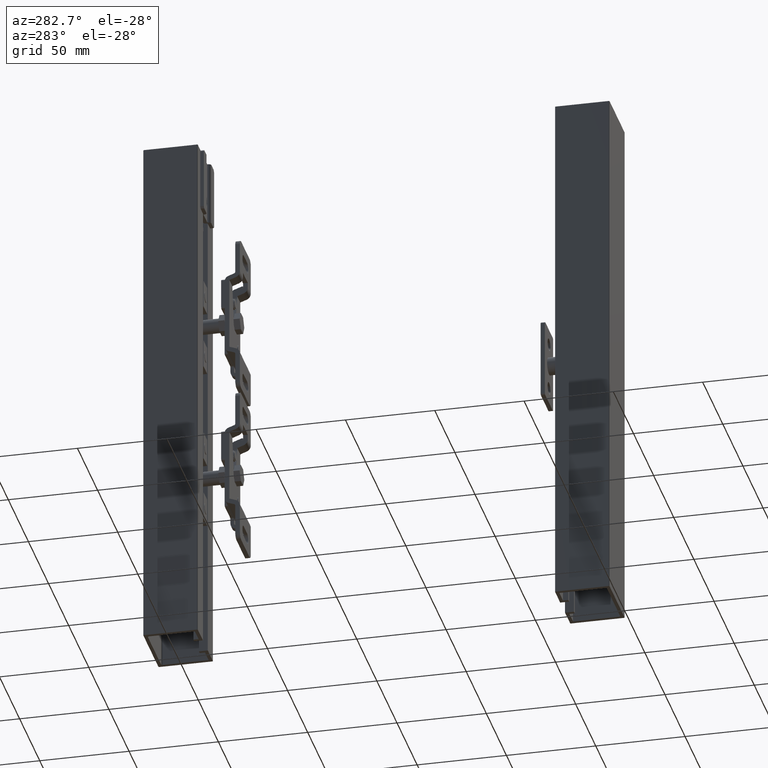
[diagram: clean part render]
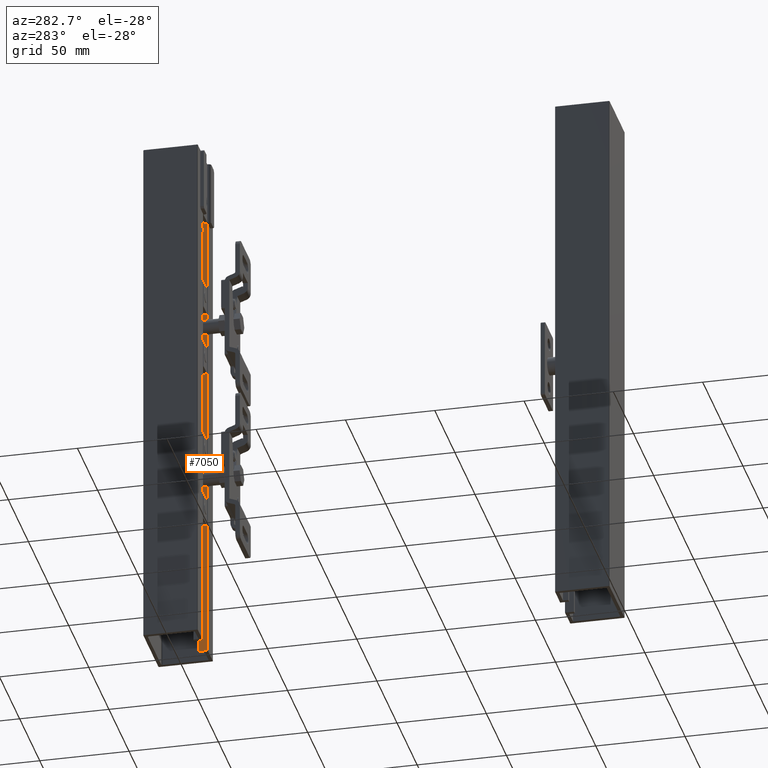
[diagram: same view with one face highlighted and labeled with its STEP entity id]
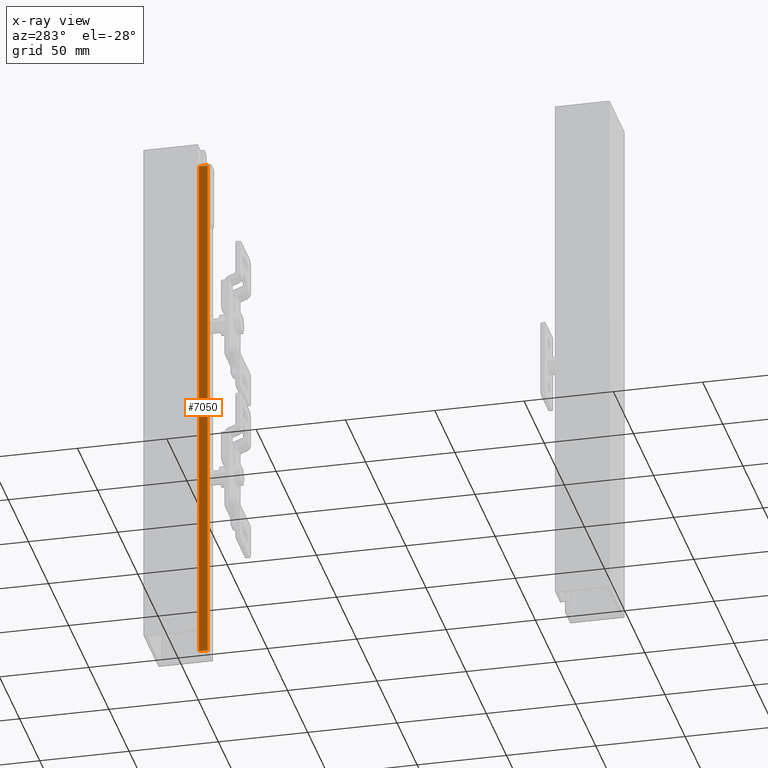
[diagram: x-ray of the same camera — body ghosted, the highlighted face saturated]
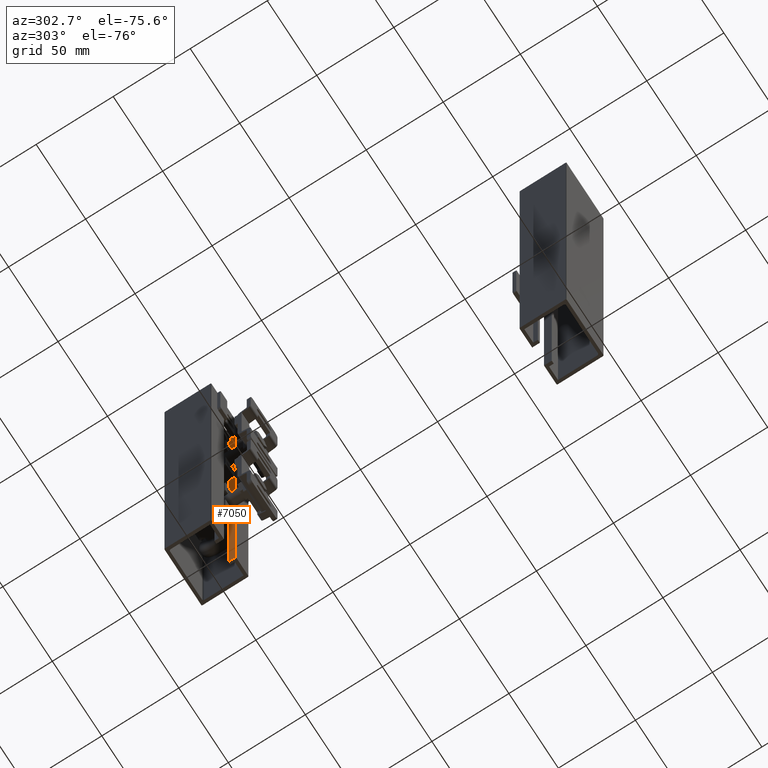
[diagram: same view with one face highlighted and labeled with its STEP entity id]
A machine part, auxiliary view. The second image highlights one B-rep face of the part: STEP entity #7050.
The next image is the same camera in x-ray: the body ghosted, the highlighted face saturated — about 0% of this face is hidden behind the body in this view.
A second angle (auxiliary view) of the same face is appended — the face is thin or edge-on in the first view.
In plain terms, the highlighted planar face has unit normal (-1, -0, 0).
Its self-contained STEP definition (entity closure, byte-faithful):
#294=PLANE('',#7503);
#542=FACE_OUTER_BOUND('',#967,.T.);
#967=EDGE_LOOP('',(#4958,#4959,#4960,#4961));
#1519=LINE('',#10509,#2178);
#1548=LINE('',#10578,#2207);
#1555=LINE('',#10591,#2214);
#1556=LINE('',#10593,#2215);
#2178=VECTOR('',#8290,5.);
#2207=VECTOR('',#8351,300.);
#2214=VECTOR('',#8366,300.);
#2215=VECTOR('',#8369,5.);
#3156=VERTEX_POINT('',#10506);
#3157=VERTEX_POINT('',#10508);
#3181=VERTEX_POINT('',#10577);
#3183=VERTEX_POINT('',#10589);
#3867=EDGE_CURVE('',#3156,#3157,#1519,.T.);
#3902=EDGE_CURVE('',#3157,#3181,#1548,.T.);
#3909=EDGE_CURVE('',#3156,#3183,#1555,.T.);
#3910=EDGE_CURVE('',#3181,#3183,#1556,.T.);
#4958=ORIENTED_EDGE('',*,*,#3909,.T.);
#4959=ORIENTED_EDGE('',*,*,#3910,.F.);
#4960=ORIENTED_EDGE('',*,*,#3902,.F.);
#4961=ORIENTED_EDGE('',*,*,#3867,.F.);
#7050=ADVANCED_FACE('',(#542),#294,.T.);
#7503=AXIS2_PLACEMENT_3D('',#10592,#8367,#8368);
#8290=DIRECTION('',(-6.66133814775094E-16,1.,0.));
#8351=DIRECTION('',(0.,0.,1.));
#8366=DIRECTION('',(0.,0.,1.));
#8367=DIRECTION('center_axis',(-1.,-6.66133814775094E-16,0.));
#8368=DIRECTION('ref_axis',(7.105427357601E-16,-1.,0.));
#8369=DIRECTION('',(6.66133814775094E-16,-1.,0.));
#10506=CARTESIAN_POINT('',(6.00000000000002,-15.25,-150.));
#10508=CARTESIAN_POINT('',(6.00000000000001,-10.25,-150.));
#10509=CARTESIAN_POINT('',(6.00000000000002,-10.25,-150.));
#10577=CARTESIAN_POINT('',(6.00000000000001,-10.25,150.));
#10578=CARTESIAN_POINT('',(6.00000000000002,-10.25,0.));
#10589=CARTESIAN_POINT('',(6.00000000000002,-15.25,150.));
#10591=CARTESIAN_POINT('',(6.00000000000002,-15.25,0.));
#10592=CARTESIAN_POINT('Origin',(6.00000000000002,-10.25,0.));
#10593=CARTESIAN_POINT('',(6.00000000000002,-10.25,150.));